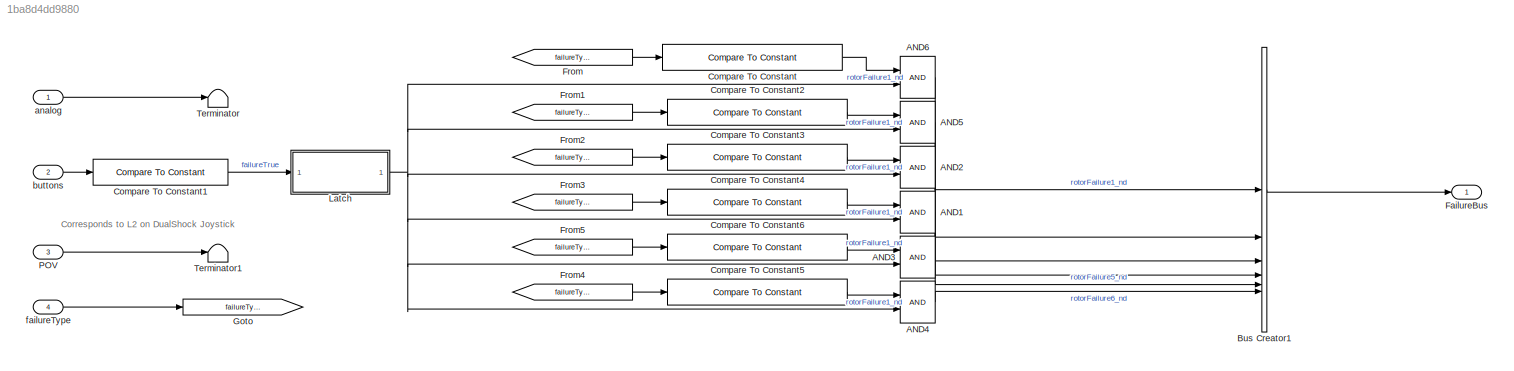
MODEL slx_1ba8d4dd9880
KIND model
BLOCK [Logic] AND1
  AllPortsSameDT = off
  IconShape = distinctive
  OutDataTypeStr = boolean
BLOCK [Logic] AND2
  AllPortsSameDT = off
  IconShape = distinctive
  OutDataTypeStr = boolean
BLOCK [Logic] AND3
  AllPortsSameDT = off
  IconShape = distinctive
  OutDataTypeStr = boolean
BLOCK [Logic] AND4
  AllPortsSameDT = off
  IconShape = distinctive
  OutDataTypeStr = boolean
BLOCK [Logic] AND5
  AllPortsSameDT = off
  IconShape = distinctive
  OutDataTypeStr = boolean
BLOCK [Logic] AND6
  AllPortsSameDT = off
  IconShape = distinctive
  OutDataTypeStr = boolean
BLOCK [BusCreator] Bus Creator1
  DisplayOption = bar
  InheritFromInputs = off
  Inputs = 6
  OutDataTypeStr = Bus: FailureBus
BLOCK [Reference] Compare To Constant  REF=simulink/Logic and Bit
Operations/Compare
To Constant
  SourceBlock = simulink/Logic and Bit\nOperations/Compare\nTo Constant
  SourceType = Compare To Constant
BLOCK [Reference] Compare To Constant1  REF=simulink/Logic and Bit
Operations/Compare
To Constant
  SourceBlock = simulink/Logic and Bit\nOperations/Compare\nTo Constant
  SourceType = Compare To Constant
BLOCK [Reference] Compare To Constant2  REF=simulink/Logic and Bit
Operations/Compare
To Constant
  SourceBlock = simulink/Logic and Bit\nOperations/Compare\nTo Constant
  SourceType = Compare To Constant
BLOCK [Reference] Compare To Constant3  REF=simulink/Logic and Bit
Operations/Compare
To Constant
  SourceBlock = simulink/Logic and Bit\nOperations/Compare\nTo Constant
  SourceType = Compare To Constant
BLOCK [Reference] Compare To Constant4  REF=simulink/Logic and Bit
Operations/Compare
To Constant
  SourceBlock = simulink/Logic and Bit\nOperations/Compare\nTo Constant
  SourceType = Compare To Constant
BLOCK [Reference] Compare To Constant5  REF=simulink/Logic and Bit
Operations/Compare
To Constant
  SourceBlock = simulink/Logic and Bit\nOperations/Compare\nTo Constant
  SourceType = Compare To Constant
BLOCK [Reference] Compare To Constant6  REF=simulink/Logic and Bit
Operations/Compare
To Constant
  SourceBlock = simulink/Logic and Bit\nOperations/Compare\nTo Constant
  SourceType = Compare To Constant
BLOCK [Outport] FailureBus
  OutDataTypeStr = Bus: FailureBus
BLOCK [From] From
  GotoTag = failureType
BLOCK [From] From1
  GotoTag = failureType
BLOCK [From] From2
  GotoTag = failureType
BLOCK [From] From3
  GotoTag = failureType
BLOCK [From] From4
  GotoTag = failureType
BLOCK [From] From5
  GotoTag = failureType
BLOCK [Goto] Goto
  GotoTag = failureType
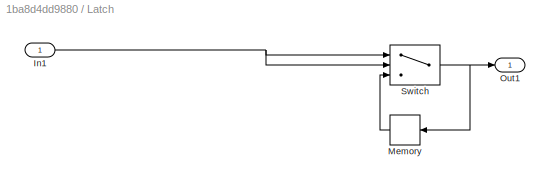
BLOCK [SubSystem] Latch
BLOCK [Inport] Latch/In1
BLOCK [Memory] Latch/Memory
  NameLocation = top
BLOCK [Outport] Latch/Out1
BLOCK [Switch] Latch/Switch
  Criteria = u2 > Threshold
  InputSameDT = off
  SaturateOnIntegerOverflow = off
BLOCK [Inport] POV
  Port = 3
BLOCK [Terminator] Terminator
BLOCK [Terminator] Terminator1
BLOCK [Inport] analog
  PortDimensions = 6
BLOCK [Inport] buttons
  OutDataTypeStr = uint32
  Port = 2
BLOCK [Inport] failureType
  OutDataTypeStr = Enum:EnumHexFailureType
  Port = 4
ANNOTATION (root): Corresponds to L2 on DualShock Joystick
LINE AND1:1 -> Bus Creator1:4
LINE AND2:1 -> Bus Creator1:3
LINE AND3:1 -> Bus Creator1:5
LINE AND4:1 -> Bus Creator1:6
LINE AND5:1 -> Bus Creator1:2
LINE AND6:1 -> Bus Creator1:1
LINE Bus Creator1:1 -> FailureBus:1
LINE Compare To Constant1:1 -> Latch:1
LINE Compare To Constant2:1 -> AND5:1
LINE Compare To Constant3:1 -> AND2:1
LINE Compare To Constant4:1 -> AND1:1
LINE Compare To Constant5:1 -> AND4:1
LINE Compare To Constant6:1 -> AND3:1
LINE Compare To Constant:1 -> AND6:1
LINE From1:1 -> Compare To Constant2:1
LINE From2:1 -> Compare To Constant3:1
LINE From3:1 -> Compare To Constant4:1
LINE From4:1 -> Compare To Constant5:1
LINE From5:1 -> Compare To Constant6:1
LINE From:1 -> Compare To Constant:1
NET Latch/In1:1 -> Latch/Switch:1, Latch/Switch:2
LINE Latch/Memory:1 -> Latch/Switch:3
NET Latch/Switch:1 -> Latch/Memory:1, Latch/Out1:1
NET Latch:1 -> AND1:2, AND2:2, AND3:2, AND4:2, AND5:2, AND6:2
LINE POV:1 -> Terminator1:1
LINE analog:1 -> Terminator:1
LINE buttons:1 -> Compare To Constant1:1
LINE failureType:1 -> Goto:1
note: NET lines group one-source signal fan-out (src -> all destinations, sorted); 1:1 wires keep LINE
